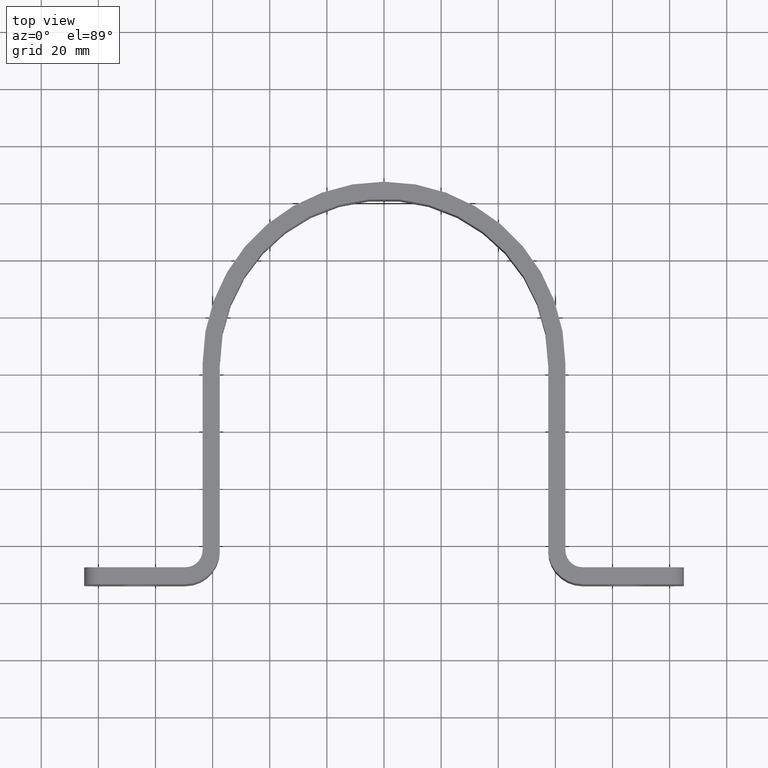
[diagram: clean part render]
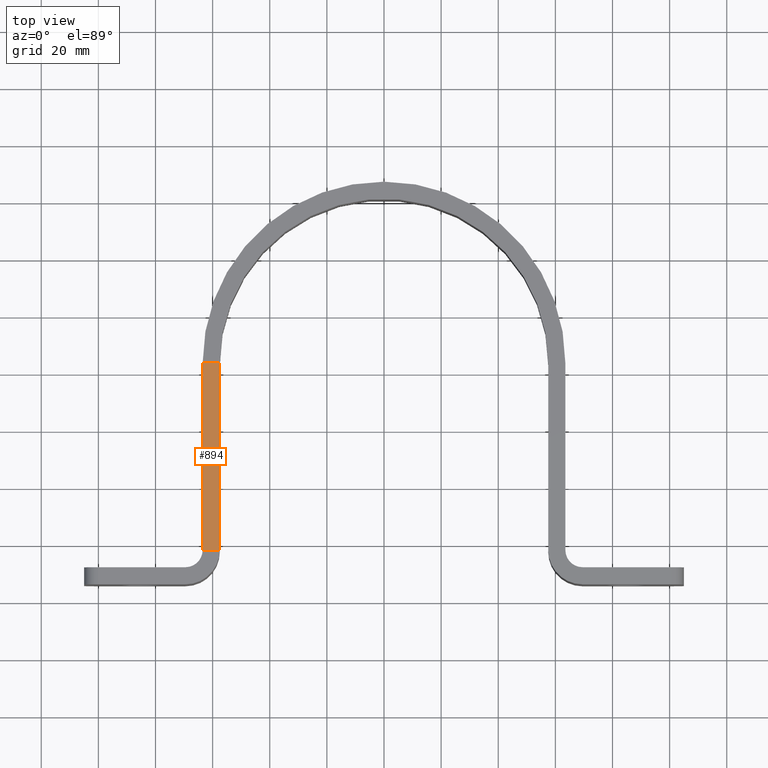
[diagram: same view with one face highlighted and labeled with its STEP entity id]
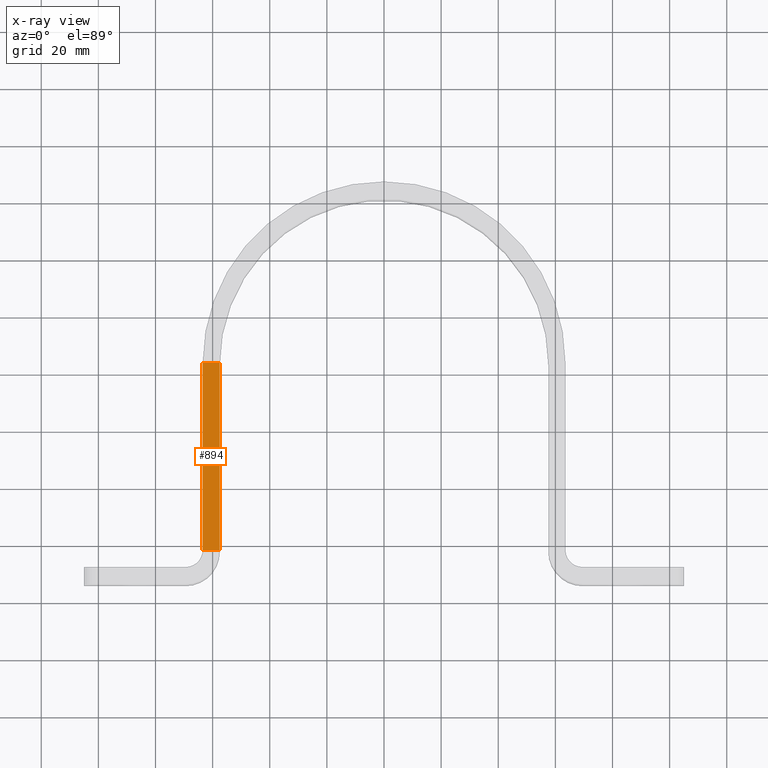
[diagram: x-ray of the same camera — body ghosted, the highlighted face saturated]
A machine part, top view. The second image highlights one B-rep face of the part: STEP entity #894.
The next image is the same camera in x-ray: the body ghosted, the highlighted face saturated — about 0% of this face is hidden behind the body in this view.
In plain terms, the highlighted planar face has unit normal (0, 0, 1).
Its self-contained STEP definition (entity closure, byte-faithful):
#12 = EDGE_CURVE ( 'NONE', #216, #853, #547, .T. ) ;
#13 = CARTESIAN_POINT ( 'NONE',  ( -57.50000000000000711, 83.49999999999995737, 20.00000000000000000 ) ) ;
#50 = LINE ( 'NONE', #736, #629 ) ;
#83 = ORIENTED_EDGE ( 'NONE', *, *, #365, .T. ) ;
#99 = ORIENTED_EDGE ( 'NONE', *, *, #718, .T. ) ;
#165 = CARTESIAN_POINT ( 'NONE',  ( -57.50000000000000711, 83.49999999999995737, 20.00000000000000000 ) ) ;
#174 = AXIS2_PLACEMENT_3D ( 'NONE', #366, #635, #711 ) ;
#182 = DIRECTION ( 'NONE',  ( -1.000000000000000000, 4.625929269271481378E-15, 0.000000000000000000 ) ) ;
#203 = FACE_OUTER_BOUND ( 'NONE', #782, .T. ) ;
#216 = VERTEX_POINT ( 'NONE', #497 ) ;
#288 = PLANE ( 'NONE',  #174 ) ;
#357 = VERTEX_POINT ( 'NONE', #679 ) ;
#365 = EDGE_CURVE ( 'NONE', #357, #216, #1013, .T. ) ;
#366 = CARTESIAN_POINT ( 'NONE',  ( 63.50000000000001421, 83.49999999999998579, 20.00000000000000000 ) ) ;
#405 = DIRECTION ( 'NONE',  ( -0.000000000000000000, 1.000000000000000000, 0.000000000000000000 ) ) ;
#486 = VERTEX_POINT ( 'NONE', #839 ) ;
#497 = CARTESIAN_POINT ( 'NONE',  ( -57.50000000000000711, 17.99999999999997513, 20.00000000000000000 ) ) ;
#523 = VECTOR ( 'NONE', #730, 1000.000000000000000 ) ;
#547 = LINE ( 'NONE', #872, #523 ) ;
#621 = LINE ( 'NONE', #165, #814 ) ;
#629 = VECTOR ( 'NONE', #405, 1000.000000000000000 ) ;
#635 = DIRECTION ( 'NONE',  ( 0.000000000000000000, 0.000000000000000000, 1.000000000000000000 ) ) ;
#679 = CARTESIAN_POINT ( 'NONE',  ( -63.50000000000001421, 17.99999999999997513, 20.00000000000000000 ) ) ;
#694 = ORIENTED_EDGE ( 'NONE', *, *, #707, .F. ) ;
#707 = EDGE_CURVE ( 'NONE', #357, #486, #50, .T. ) ;
#711 = DIRECTION ( 'NONE',  ( 1.000000000000000000, 0.000000000000000000, -0.000000000000000000 ) ) ;
#718 = EDGE_CURVE ( 'NONE', #853, #486, #621, .T. ) ;
#730 = DIRECTION ( 'NONE',  ( 0.000000000000000000, 1.000000000000000000, 0.000000000000000000 ) ) ;
#736 = CARTESIAN_POINT ( 'NONE',  ( -63.50000000000001421, 5.999999999999974243, 20.00000000000000000 ) ) ;
#771 = CARTESIAN_POINT ( 'NONE',  ( -63.50000000000001421, 17.99999999999997513, 20.00000000000000000 ) ) ;
#782 = EDGE_LOOP ( 'NONE', ( #936, #99, #694, #83 ) ) ;
#814 = VECTOR ( 'NONE', #182, 1000.000000000000000 ) ;
#839 = CARTESIAN_POINT ( 'NONE',  ( -63.50000000000001421, 83.49999999999998579, 20.00000000000000000 ) ) ;
#853 = VERTEX_POINT ( 'NONE', #13 ) ;
#872 = CARTESIAN_POINT ( 'NONE',  ( -57.50000000000000711, 5.999999999999974243, 20.00000000000000000 ) ) ;
#894 = ADVANCED_FACE ( 'NONE', ( #203 ), #288, .T. ) ;
#936 = ORIENTED_EDGE ( 'NONE', *, *, #12, .T. ) ;
#956 = VECTOR ( 'NONE', #1111, 1000.000000000000000 ) ;
#1013 = LINE ( 'NONE', #771, #956 ) ;
#1111 = DIRECTION ( 'NONE',  ( 1.000000000000000000, 0.000000000000000000, 0.000000000000000000 ) ) ;